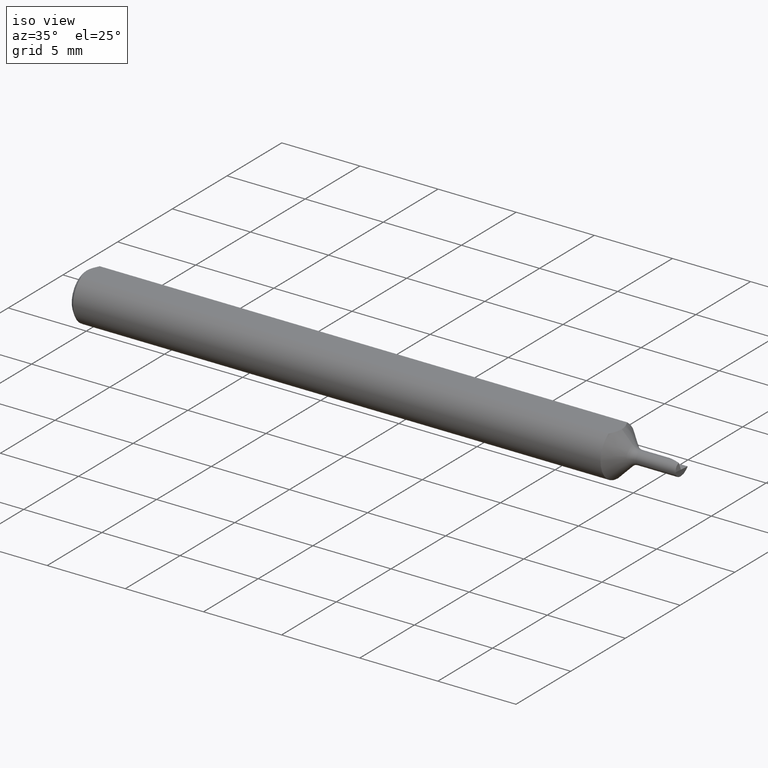
[diagram: clean part render]
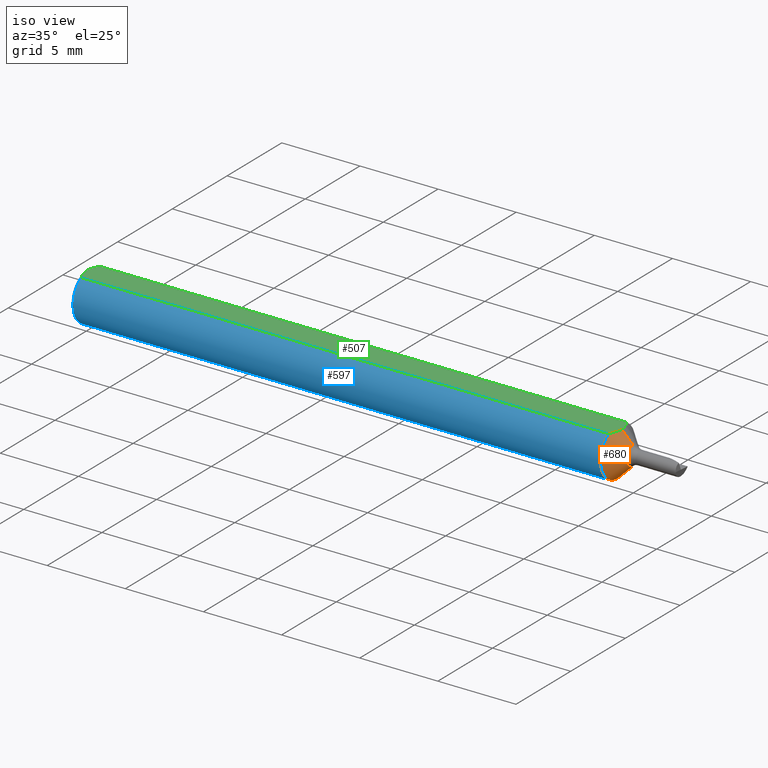
[diagram: same view with three faces highlighted in distinct colors, each labeled with its STEP entity id]
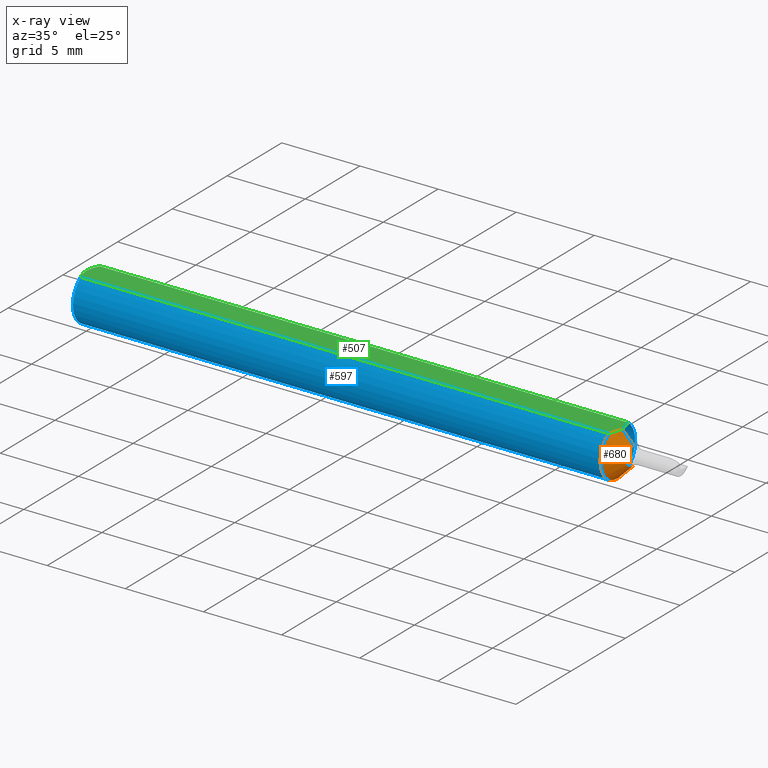
[diagram: x-ray of the same camera — body ghosted, the three highlighted faces saturated]
A machine part, iso view with three faces highlighted in distinct colors.
The next image is the same camera in x-ray (body ghosted, the three faces saturated) — at least one of them is partly hidden behind the body in this view.
Their STEP definitions:

[orange] entity #680 — the highlighted conical surface has half-angle 45 deg.
#27 = CARTESIAN_POINT ( 'NONE',  ( 1.344483314197798984, -0.02321803743435396639, 0.05235000000000001458 ) ) ;
#33 = VERTEX_POINT ( 'NONE', #369 ) ;
#41 = VECTOR ( 'NONE', #679, 39.37007874015748143 ) ;
#65 = B_SPLINE_CURVE_WITH_KNOTS ( 'NONE', 3,
 ( #604, #350, #411, #27, #186, #517 ),
 .UNSPECIFIED., .F., .F.,
 ( 4, 2, 4 ),
 ( 0.002951453973688350149, 0.003400644490106725579, 0.003849835006525100575 ),
 .UNSPECIFIED. ) ;
#76 = DIRECTION ( 'NONE',  ( -0.7071067811865437980, 8.659560562354978464E-17, -0.7071067811865512365 ) ) ;
#91 = CARTESIAN_POINT ( 'NONE',  ( 1.339150000000000285, 0.000000000000000000, 0.000000000000000000 ) ) ;
#93 = VERTEX_POINT ( 'NONE', #319 ) ;
#132 = FACE_OUTER_BOUND ( 'NONE', #694, .T. ) ;
#146 = CONICAL_SURFACE ( 'NONE', #206, 0.02382233047033627607, 0.7853981633974536081 ) ;
#183 = CARTESIAN_POINT ( 'NONE',  ( 1.377677669529663751, 2.917394075872780740E-18, -0.02382233047033629689 ) ) ;
#186 = CARTESIAN_POINT ( 'NONE',  ( 1.342000635225909733, -0.02861935738783996305, 0.05235000000000002152 ) ) ;
#206 = AXIS2_PLACEMENT_3D ( 'NONE', #235, #669, #616 ) ;
#231 = VERTEX_POINT ( 'NONE', #480 ) ;
#235 = CARTESIAN_POINT ( 'NONE',  ( 1.377677669529663751, 0.000000000000000000, 0.000000000000000000 ) ) ;
#242 = LINE ( 'NONE', #455, #41 ) ;
#260 = ORIENTED_EDGE ( 'NONE', *, *, #324, .T. ) ;
#287 = ORIENTED_EDGE ( 'NONE', *, *, #615, .F. ) ;
#300 = CARTESIAN_POINT ( 'NONE',  ( 1.377677669529663751, 0.000000000000000000, 0.000000000000000000 ) ) ;
#313 = VERTEX_POINT ( 'NONE', #183 ) ;
#319 = CARTESIAN_POINT ( 'NONE',  ( 1.349150000000000293, -2.188256422100624130E-21, 0.05235000000000001458 ) ) ;
#324 = EDGE_CURVE ( 'NONE', #313, #231, #682, .T. ) ;
#347 = DIRECTION ( 'NONE',  ( -1.000000000000000000, -0.000000000000000000, -0.000000000000000000 ) ) ;
#350 = CARTESIAN_POINT ( 'NONE',  ( 1.349150000000000293, -0.005924191432847205653, 0.05235000000000002152 ) ) ;
#358 = VERTEX_POINT ( 'NONE', #613 ) ;
#369 = CARTESIAN_POINT ( 'NONE',  ( 1.339150000000000285, 7.635672792683746671E-18, -0.06234999999999999570 ) ) ;
#370 = ORIENTED_EDGE ( 'NONE', *, *, #587, .T. ) ;
#377 = AXIS2_PLACEMENT_3D ( 'NONE', #300, #347, #506 ) ;
#384 = VECTOR ( 'NONE', #76, 39.37007874015748143 ) ;
#391 = ORIENTED_EDGE ( 'NONE', *, *, #552, .T. ) ;
#411 = CARTESIAN_POINT ( 'NONE',  ( 1.348078678928530838, -0.01191689336434303623, 0.05235000000000002152 ) ) ;
#417 = AXIS2_PLACEMENT_3D ( 'NONE', #91, #672, #630 ) ;
#436 = CIRCLE ( 'NONE', #417, 0.06235000000000000264 ) ;
#455 = CARTESIAN_POINT ( 'NONE',  ( 1.377677669529663751, 0.000000000000000000, 0.02382233047033627607 ) ) ;
#462 = LINE ( 'NONE', #684, #384 ) ;
#480 = CARTESIAN_POINT ( 'NONE',  ( 1.377677669529663751, 0.000000000000000000, 0.02382233047033629689 ) ) ;
#506 = DIRECTION ( 'NONE',  ( 0.000000000000000000, 0.000000000000000000, 1.000000000000000000 ) ) ;
#517 = CARTESIAN_POINT ( 'NONE',  ( 1.339150000000000285, -0.03386738844375220686, 0.05235000000000000070 ) ) ;
#552 = EDGE_CURVE ( 'NONE', #93, #358, #65, .T. ) ;
#561 = ORIENTED_EDGE ( 'NONE', *, *, #650, .F. ) ;
#587 = EDGE_CURVE ( 'NONE', #231, #93, #242, .T. ) ;
#604 = CARTESIAN_POINT ( 'NONE',  ( 1.349150000000000293, -2.188256422100624130E-21, 0.05235000000000001458 ) ) ;
#613 = CARTESIAN_POINT ( 'NONE',  ( 1.339150000000000285, -0.03386738844375220686, 0.05235000000000000070 ) ) ;
#615 = EDGE_CURVE ( 'NONE', #313, #33, #462, .T. ) ;
#616 = DIRECTION ( 'NONE',  ( 0.000000000000000000, 0.000000000000000000, 1.000000000000000000 ) ) ;
#630 = DIRECTION ( 'NONE',  ( 0.000000000000000000, 0.000000000000000000, 1.000000000000000000 ) ) ;
#650 = EDGE_CURVE ( 'NONE', #33, #358, #436, .T. ) ;
#669 = DIRECTION ( 'NONE',  ( -1.000000000000000000, -0.000000000000000000, -0.000000000000000000 ) ) ;
#672 = DIRECTION ( 'NONE',  ( -1.000000000000000000, -0.000000000000000000, -0.000000000000000000 ) ) ;
#679 = DIRECTION ( 'NONE',  ( -0.7071067811865437980, 0.000000000000000000, 0.7071067811865512365 ) ) ;
#680 = ADVANCED_FACE ( 'NONE', ( #132 ), #146, .T. ) ;
#682 = CIRCLE ( 'NONE', #377, 0.02382233047033627607 ) ;
#684 = CARTESIAN_POINT ( 'NONE',  ( 1.377677669529663751, 2.917394075872778044E-18, -0.02382233047033627607 ) ) ;
#694 = EDGE_LOOP ( 'NONE', ( #287, #260, #370, #391, #561 ) ) ;

[blue] entity #597 — the highlighted cylindrical surface (edge-blend (fillet) strip) has radius 1.5837 mm, axis along (-1, -0, -0).
#10 = AXIS2_PLACEMENT_3D ( 'NONE', #467, #445, #404 ) ;
#14 = AXIS2_PLACEMENT_3D ( 'NONE', #169, #67, #178 ) ;
#26 = VERTEX_POINT ( 'NONE', #207 ) ;
#33 = VERTEX_POINT ( 'NONE', #369 ) ;
#37 = ORIENTED_EDGE ( 'NONE', *, *, #230, .T. ) ;
#58 = DIRECTION ( 'NONE',  ( -1.000000000000000000, -0.000000000000000000, -0.000000000000000000 ) ) ;
#67 = DIRECTION ( 'NONE',  ( -1.000000000000000000, -0.000000000000000000, -0.000000000000000000 ) ) ;
#91 = CARTESIAN_POINT ( 'NONE',  ( 1.339150000000000285, 0.000000000000000000, 0.000000000000000000 ) ) ;
#139 = VERTEX_POINT ( 'NONE', #162 ) ;
#162 = CARTESIAN_POINT ( 'NONE',  ( 1.339150000000000285, 0.03386738844375220686, 0.05235000000000000070 ) ) ;
#169 = CARTESIAN_POINT ( 'NONE',  ( 1.339150000000000285, 0.000000000000000000, 0.000000000000000000 ) ) ;
#178 = DIRECTION ( 'NONE',  ( 0.000000000000000000, 0.000000000000000000, 1.000000000000000000 ) ) ;
#201 = AXIS2_PLACEMENT_3D ( 'NONE', #662, #482, #225 ) ;
#207 = CARTESIAN_POINT ( 'NONE',  ( 0.01000000000000001929, 0.03386738844375217911, 0.05235000000000001458 ) ) ;
#208 = VECTOR ( 'NONE', #58, 39.37007874015748143 ) ;
#225 = DIRECTION ( 'NONE',  ( 0.000000000000000000, 0.000000000000000000, -1.000000000000000000 ) ) ;
#230 = EDGE_CURVE ( 'NONE', #358, #333, #271, .T. ) ;
#233 = DIRECTION ( 'NONE',  ( 1.000000000000000000, 0.000000000000000000, 0.000000000000000000 ) ) ;
#236 = CARTESIAN_POINT ( 'NONE',  ( 0.000000000000000000, 0.03386738844375220686, 0.05235000000000000070 ) ) ;
#245 = CARTESIAN_POINT ( 'NONE',  ( 0.000000000000000000, 0.000000000000000000, 0.000000000000000000 ) ) ;
#249 = FACE_OUTER_BOUND ( 'NONE', #622, .T. ) ;
#254 = CIRCLE ( 'NONE', #201, 0.06235000000000000264 ) ;
#255 = ORIENTED_EDGE ( 'NONE', *, *, #290, .T. ) ;
#256 = ORIENTED_EDGE ( 'NONE', *, *, #454, .T. ) ;
#269 = CARTESIAN_POINT ( 'NONE',  ( 0.000000000000000000, -0.03386738844375220686, 0.05235000000000000070 ) ) ;
#271 = LINE ( 'NONE', #269, #208 ) ;
#290 = EDGE_CURVE ( 'NONE', #26, #139, #573, .T. ) ;
#293 = CYLINDRICAL_SURFACE ( 'NONE', #525, 0.06235000000000000264 ) ;
#314 = EDGE_CURVE ( 'NONE', #457, #26, #320, .T. ) ;
#320 = CIRCLE ( 'NONE', #10, 0.06235000000000000264 ) ;
#333 = VERTEX_POINT ( 'NONE', #665 ) ;
#358 = VERTEX_POINT ( 'NONE', #613 ) ;
#362 = DIRECTION ( 'NONE',  ( -1.000000000000000000, -0.000000000000000000, -0.000000000000000000 ) ) ;
#369 = CARTESIAN_POINT ( 'NONE',  ( 1.339150000000000285, 7.635672792683746671E-18, -0.06234999999999999570 ) ) ;
#404 = DIRECTION ( 'NONE',  ( 0.000000000000000000, 0.000000000000000000, -1.000000000000000000 ) ) ;
#417 = AXIS2_PLACEMENT_3D ( 'NONE', #91, #672, #630 ) ;
#419 = VECTOR ( 'NONE', #233, 39.37007874015748143 ) ;
#436 = CIRCLE ( 'NONE', #417, 0.06235000000000000264 ) ;
#445 = DIRECTION ( 'NONE',  ( 1.000000000000000000, 0.000000000000000000, 0.000000000000000000 ) ) ;
#454 = EDGE_CURVE ( 'NONE', #333, #457, #254, .T. ) ;
#457 = VERTEX_POINT ( 'NONE', #550 ) ;
#467 = CARTESIAN_POINT ( 'NONE',  ( 0.01000000000000001582, 0.000000000000000000, 0.000000000000000000 ) ) ;
#468 = EDGE_CURVE ( 'NONE', #139, #33, #651, .T. ) ;
#482 = DIRECTION ( 'NONE',  ( 1.000000000000000000, 0.000000000000000000, 0.000000000000000000 ) ) ;
#525 = AXIS2_PLACEMENT_3D ( 'NONE', #245, #362, #623 ) ;
#550 = CARTESIAN_POINT ( 'NONE',  ( 0.01000000000000001582, 0.000000000000000000, -0.06235000000000000264 ) ) ;
#566 = ORIENTED_EDGE ( 'NONE', *, *, #314, .T. ) ;
#573 = LINE ( 'NONE', #236, #419 ) ;
#597 = ADVANCED_FACE ( 'NONE', ( #249 ), #293, .T. ) ;
#613 = CARTESIAN_POINT ( 'NONE',  ( 1.339150000000000285, -0.03386738844375220686, 0.05235000000000000070 ) ) ;
#622 = EDGE_LOOP ( 'NONE', ( #695, #667, #37, #256, #566, #255 ) ) ;
#623 = DIRECTION ( 'NONE',  ( 0.000000000000000000, 0.000000000000000000, 1.000000000000000000 ) ) ;
#630 = DIRECTION ( 'NONE',  ( 0.000000000000000000, 0.000000000000000000, 1.000000000000000000 ) ) ;
#650 = EDGE_CURVE ( 'NONE', #33, #358, #436, .T. ) ;
#651 = CIRCLE ( 'NONE', #14, 0.06235000000000000264 ) ;
#662 = CARTESIAN_POINT ( 'NONE',  ( 0.01000000000000001582, 0.000000000000000000, 0.000000000000000000 ) ) ;
#665 = CARTESIAN_POINT ( 'NONE',  ( 0.01000000000000853331, -0.03386738844395138087, 0.05235000000000001458 ) ) ;
#667 = ORIENTED_EDGE ( 'NONE', *, *, #650, .T. ) ;
#672 = DIRECTION ( 'NONE',  ( -1.000000000000000000, -0.000000000000000000, -0.000000000000000000 ) ) ;
#695 = ORIENTED_EDGE ( 'NONE', *, *, #468, .T. ) ;

[green] entity #507 — the highlighted planar face has unit normal (0, 0, -1).
#12 = CARTESIAN_POINT ( 'NONE',  ( 0.001055043921644817405, -0.01186408073217191071, 0.05235000000000002152 ) ) ;
#13 = ORIENTED_EDGE ( 'NONE', *, *, #86, .T. ) ;
#26 = VERTEX_POINT ( 'NONE', #207 ) ;
#27 = CARTESIAN_POINT ( 'NONE',  ( 1.344483314197798984, -0.02321803743435396639, 0.05235000000000001458 ) ) ;
#58 = DIRECTION ( 'NONE',  ( -1.000000000000000000, -0.000000000000000000, -0.000000000000000000 ) ) ;
#59 = DIRECTION ( 'NONE',  ( 0.000000000000000000, 0.000000000000000000, -1.000000000000000000 ) ) ;
#65 = B_SPLINE_CURVE_WITH_KNOTS ( 'NONE', 3,
 ( #604, #350, #411, #27, #186, #517 ),
 .UNSPECIFIED., .F., .F.,
 ( 4, 2, 4 ),
 ( 0.002951453973688350149, 0.003400644490106725579, 0.003849835006525100575 ),
 .UNSPECIFIED. ) ;
#86 = EDGE_CURVE ( 'NONE', #26, #229, #654, .T. ) ;
#93 = VERTEX_POINT ( 'NONE', #319 ) ;
#120 = CARTESIAN_POINT ( 'NONE',  ( 0.000000000000000000, 0.000000000000000000, 0.05235000000000005621 ) ) ;
#122 = CARTESIAN_POINT ( 'NONE',  ( 1.500000000000000222, 0.06235000000000000264, 0.05235000000000001458 ) ) ;
#139 = VERTEX_POINT ( 'NONE', #162 ) ;
#148 = B_SPLINE_CURVE_WITH_KNOTS ( 'NONE', 3,
 ( #538, #277, #12, #646, #542, #173 ),
 .UNSPECIFIED., .F., .F.,
 ( 4, 2, 4 ),
 ( 0.001820301466808305416, 0.002269751589840578697, 0.002719201712872851978 ),
 .UNSPECIFIED. ) ;
#155 = CARTESIAN_POINT ( 'NONE',  ( 0.004671770759546966557, 0.02323517832780101766, 0.05235000000000002152 ) ) ;
#158 = CARTESIAN_POINT ( 'NONE',  ( 0.000000000000000000, 0.000000000000000000, 0.05235000000000005621 ) ) ;
#162 = CARTESIAN_POINT ( 'NONE',  ( 1.339150000000000285, 0.03386738844375220686, 0.05235000000000000070 ) ) ;
#173 = CARTESIAN_POINT ( 'NONE',  ( 0.01000000000000853331, -0.03386738844395138087, 0.05235000000000001458 ) ) ;
#186 = CARTESIAN_POINT ( 'NONE',  ( 1.342000635225909733, -0.02861935738783996305, 0.05235000000000002152 ) ) ;
#197 = CARTESIAN_POINT ( 'NONE',  ( 1.341993063989529666, 0.02863329606483934128, 0.05235000000000002152 ) ) ;
#203 = EDGE_CURVE ( 'NONE', #229, #333, #148, .T. ) ;
#207 = CARTESIAN_POINT ( 'NONE',  ( 0.01000000000000001929, 0.03386738844375217911, 0.05235000000000001458 ) ) ;
#208 = VECTOR ( 'NONE', #58, 39.37007874015748143 ) ;
#229 = VERTEX_POINT ( 'NONE', #120 ) ;
#230 = EDGE_CURVE ( 'NONE', #358, #333, #271, .T. ) ;
#233 = DIRECTION ( 'NONE',  ( 1.000000000000000000, 0.000000000000000000, 0.000000000000000000 ) ) ;
#236 = CARTESIAN_POINT ( 'NONE',  ( 0.000000000000000000, 0.03386738844375220686, 0.05235000000000000070 ) ) ;
#241 = ORIENTED_EDGE ( 'NONE', *, *, #230, .F. ) ;
#269 = CARTESIAN_POINT ( 'NONE',  ( 0.000000000000000000, -0.03386738844375220686, 0.05235000000000000070 ) ) ;
#271 = LINE ( 'NONE', #269, #208 ) ;
#277 = CARTESIAN_POINT ( 'NONE',  ( -8.005211676014286058E-16, -0.005965286321711137096, 0.05235000000000002152 ) ) ;
#290 = EDGE_CURVE ( 'NONE', #26, #139, #573, .T. ) ;
#304 = CARTESIAN_POINT ( 'NONE',  ( 0.01000000000000001929, 0.03386738844375217911, 0.05235000000000001458 ) ) ;
#312 = AXIS2_PLACEMENT_3D ( 'NONE', #122, #59, #385 ) ;
#319 = CARTESIAN_POINT ( 'NONE',  ( 1.349150000000000293, -2.188256422100624130E-21, 0.05235000000000001458 ) ) ;
#333 = VERTEX_POINT ( 'NONE', #665 ) ;
#350 = CARTESIAN_POINT ( 'NONE',  ( 1.349150000000000293, -0.005924191432847205653, 0.05235000000000002152 ) ) ;
#358 = VERTEX_POINT ( 'NONE', #613 ) ;
#361 = ORIENTED_EDGE ( 'NONE', *, *, #702, .F. ) ;
#385 = DIRECTION ( 'NONE',  ( -1.000000000000000000, 0.000000000000000000, -0.000000000000000000 ) ) ;
#411 = CARTESIAN_POINT ( 'NONE',  ( 1.348078678928530838, -0.01191689336434303623, 0.05235000000000002152 ) ) ;
#419 = VECTOR ( 'NONE', #233, 39.37007874015748143 ) ;
#425 = CARTESIAN_POINT ( 'NONE',  ( 0.001063697276021621741, 0.01189177144351693215, 0.05235000000000001458 ) ) ;
#440 = ORIENTED_EDGE ( 'NONE', *, *, #290, .F. ) ;
#458 = CARTESIAN_POINT ( 'NONE',  ( 1.339150000000000285, 0.03386738844375220686, 0.05235000000000000070 ) ) ;
#466 = CARTESIAN_POINT ( 'NONE',  ( 1.349150000000000293, 0.005920875246928953770, 0.05235000000000002152 ) ) ;
#474 = CARTESIAN_POINT ( 'NONE',  ( 1.349150000000000293, -2.188256422100624130E-21, 0.05235000000000001458 ) ) ;
#507 = ADVANCED_FACE ( 'NONE', ( #601 ), #608, .F. ) ;
#512 = ORIENTED_EDGE ( 'NONE', *, *, #203, .T. ) ;
#517 = CARTESIAN_POINT ( 'NONE',  ( 1.339150000000000285, -0.03386738844375220686, 0.05235000000000000070 ) ) ;
#524 = CARTESIAN_POINT ( 'NONE',  ( 0.007185421074056361733, 0.02868573718286557273, 0.05235000000000002152 ) ) ;
#528 = ORIENTED_EDGE ( 'NONE', *, *, #552, .F. ) ;
#538 = CARTESIAN_POINT ( 'NONE',  ( 0.000000000000000000, 0.000000000000000000, 0.05235000000000005621 ) ) ;
#542 = CARTESIAN_POINT ( 'NONE',  ( 0.007163450771416337952, -0.02864528976632486554, 0.05235000000000002152 ) ) ;
#552 = EDGE_CURVE ( 'NONE', #93, #358, #65, .T. ) ;
#562 = CARTESIAN_POINT ( 'NONE',  ( 1.344488220844932691, 0.02320483992252774658, 0.05235000000000002152 ) ) ;
#571 = B_SPLINE_CURVE_WITH_KNOTS ( 'NONE', 3,
 ( #458, #197, #562, #627, #466, #474 ),
 .UNSPECIFIED., .F., .F.,
 ( 4, 2, 4 ),
 ( 0.002053575827796443130, 0.002502514900742396423, 0.002951453973688350149 ),
 .UNSPECIFIED. ) ;
#573 = LINE ( 'NONE', #236, #419 ) ;
#580 = EDGE_LOOP ( 'NONE', ( #440, #13, #512, #241, #528, #361 ) ) ;
#601 = FACE_OUTER_BOUND ( 'NONE', #580, .T. ) ;
#604 = CARTESIAN_POINT ( 'NONE',  ( 1.349150000000000293, -2.188256422100624130E-21, 0.05235000000000001458 ) ) ;
#608 = PLANE ( 'NONE',  #312 ) ;
#613 = CARTESIAN_POINT ( 'NONE',  ( 1.339150000000000285, -0.03386738844375220686, 0.05235000000000000070 ) ) ;
#627 = CARTESIAN_POINT ( 'NONE',  ( 1.348078676938162301, 0.01191467125359127986, 0.05235000000000001458 ) ) ;
#644 = CARTESIAN_POINT ( 'NONE',  ( -8.229892167436566619E-16, 0.005954997531773978219, 0.05235000000000002152 ) ) ;
#646 = CARTESIAN_POINT ( 'NONE',  ( 0.004679365186825881588, -0.02325953974091120660, 0.05235000000000001458 ) ) ;
#654 = B_SPLINE_CURVE_WITH_KNOTS ( 'NONE', 3,
 ( #304, #524, #155, #425, #644, #158 ),
 .UNSPECIFIED., .F., .F.,
 ( 4, 2, 4 ),
 ( 0.0009229516234079832016, 0.001371626545108144309, 0.001820301466808305416 ),
 .UNSPECIFIED. ) ;
#665 = CARTESIAN_POINT ( 'NONE',  ( 0.01000000000000853331, -0.03386738844395138087, 0.05235000000000001458 ) ) ;
#702 = EDGE_CURVE ( 'NONE', #139, #93, #571, .T. ) ;